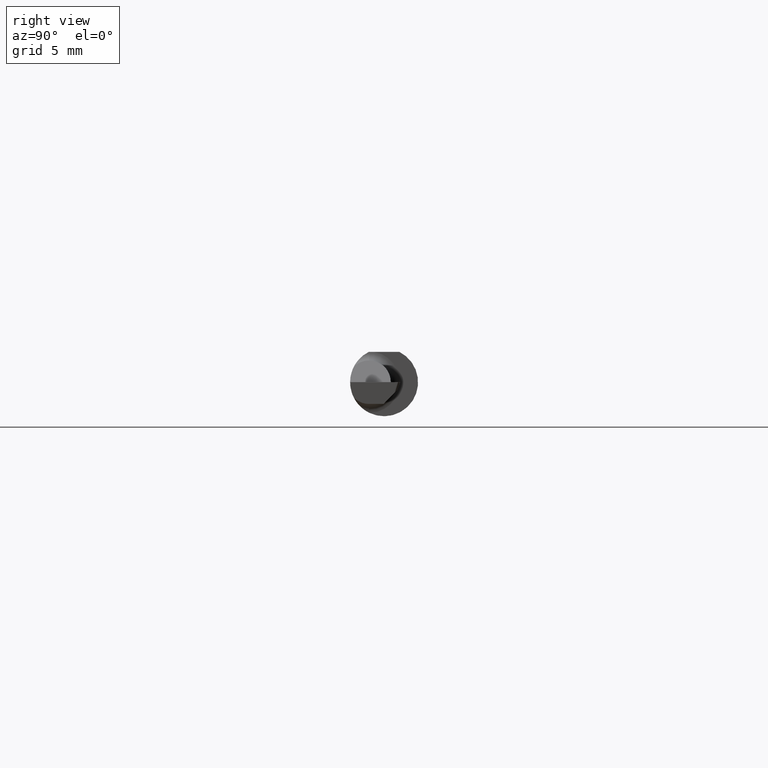
[diagram: clean part render]
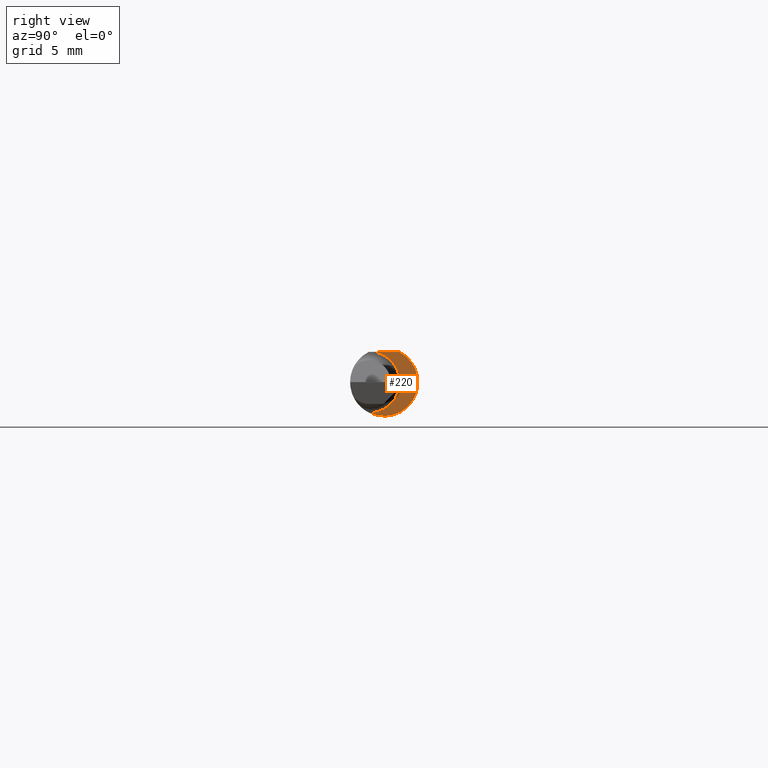
[diagram: same view with one face highlighted and labeled with its STEP entity id]
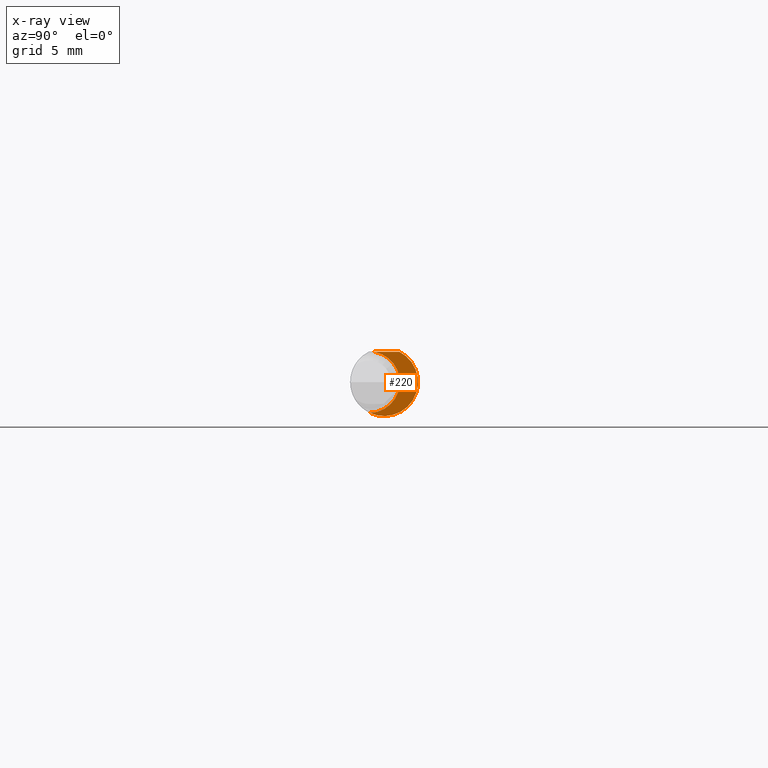
[diagram: x-ray of the same camera — body ghosted, the highlighted face saturated]
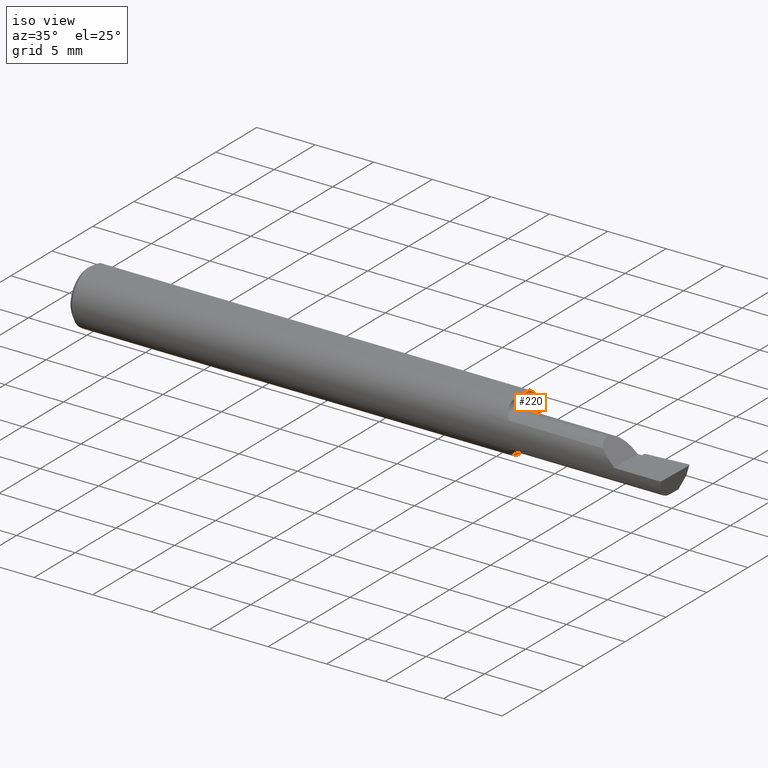
[diagram: same view with one face highlighted and labeled with its STEP entity id]
A machine part, right view. The second image highlights one B-rep face of the part: STEP entity #220.
The next image is the same camera in x-ray: the body ghosted, the highlighted face saturated — about 0% of this face is hidden behind the body in this view.
A second angle (iso view) of the same face is appended — the face is thin or edge-on in the first view.
In plain terms, the highlighted planar face has unit normal (1, 0, 0).
Its self-contained STEP definition (entity closure, byte-faithful):
#28 = VERTEX_POINT ( 'NONE', #280 ) ;
#87 = EDGE_LOOP ( 'NONE', ( #367, #601, #108 ) ) ;
#108 = ORIENTED_EDGE ( 'NONE', *, *, #670, .T. ) ;
#118 = VECTOR ( 'NONE', #650, 39.37007874015748143 ) ;
#160 = DIRECTION ( 'NONE',  ( 1.000000000000000000, 0.0000000000000000000, 0.0000000000000000000 ) ) ;
#187 = DIRECTION ( 'NONE',  ( 1.000000000000000000, 0.0000000000000000000, 0.0000000000000000000 ) ) ;
#210 = CIRCLE ( 'NONE', #370, 0.08489999999999996161 ) ;
#220 = ADVANCED_FACE ( 'NONE', ( #416 ), #585, .T. ) ;
#238 = DIRECTION ( 'NONE',  ( 0.0000000000000000000, 0.0000000000000000000, -1.000000000000000000 ) ) ;
#264 = CARTESIAN_POINT ( 'NONE',  ( 1.459999999999999742, 0.1436000000000000332, 0.08359999999999999376 ) ) ;
#280 = CARTESIAN_POINT ( 'NONE',  ( 1.459999999999999742, -0.02669966216601827105, 0.08360000000000000764 ) ) ;
#363 = VERTEX_POINT ( 'NONE', #704 ) ;
#365 = LINE ( 'NONE', #264, #118 ) ;
#367 = ORIENTED_EDGE ( 'NONE', *, *, #449, .T. ) ;
#370 = AXIS2_PLACEMENT_3D ( 'NONE', #457, #605, #381 ) ;
#379 = CARTESIAN_POINT ( 'NONE',  ( 1.459999999999999742, 0.0000000000000000000, 0.0000000000000000000 ) ) ;
#381 = DIRECTION ( 'NONE',  ( 0.0000000000000000000, 0.0000000000000000000, 1.000000000000000000 ) ) ;
#413 = CARTESIAN_POINT ( 'NONE',  ( 1.459999999999999742, 0.04339999999999995250, 0.0000000000000000000 ) ) ;
#416 = FACE_OUTER_BOUND ( 'NONE', #87, .T. ) ;
#417 = CARTESIAN_POINT ( 'NONE',  ( 1.459999999999999742, -0.03946024096385552377, -0.08487549341873930342 ) ) ;
#418 = VERTEX_POINT ( 'NONE', #417 ) ;
#420 = CIRCLE ( 'NONE', #678, 0.09360000000000001652 ) ;
#449 = EDGE_CURVE ( 'NONE', #418, #363, #420, .T. ) ;
#457 = CARTESIAN_POINT ( 'NONE',  ( 1.459999999999999742, -0.04150000000000000216, 0.0000000000000000000 ) ) ;
#475 = EDGE_CURVE ( 'NONE', #363, #28, #365, .T. ) ;
#476 = AXIS2_PLACEMENT_3D ( 'NONE', #413, #187, #580 ) ;
#580 = DIRECTION ( 'NONE',  ( 0.0000000000000000000, 0.0000000000000000000, -1.000000000000000000 ) ) ;
#585 = PLANE ( 'NONE',  #476 ) ;
#601 = ORIENTED_EDGE ( 'NONE', *, *, #475, .T. ) ;
#605 = DIRECTION ( 'NONE',  ( -1.000000000000000000, -0.0000000000000000000, -0.0000000000000000000 ) ) ;
#650 = DIRECTION ( 'NONE',  ( 0.0000000000000000000, -1.000000000000000000, 1.189000693621284344E-16 ) ) ;
#670 = EDGE_CURVE ( 'NONE', #28, #418, #210, .T. ) ;
#678 = AXIS2_PLACEMENT_3D ( 'NONE', #379, #160, #238 ) ;
#704 = CARTESIAN_POINT ( 'NONE',  ( 1.459999999999999742, 0.04209513035969836975, 0.08360000000000000764 ) ) ;